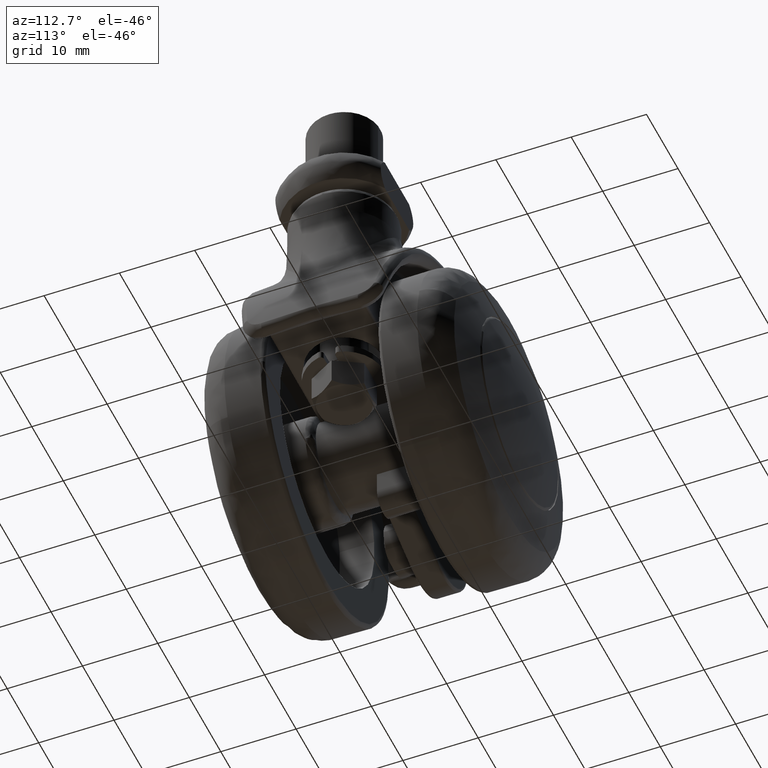
[diagram: clean part render]
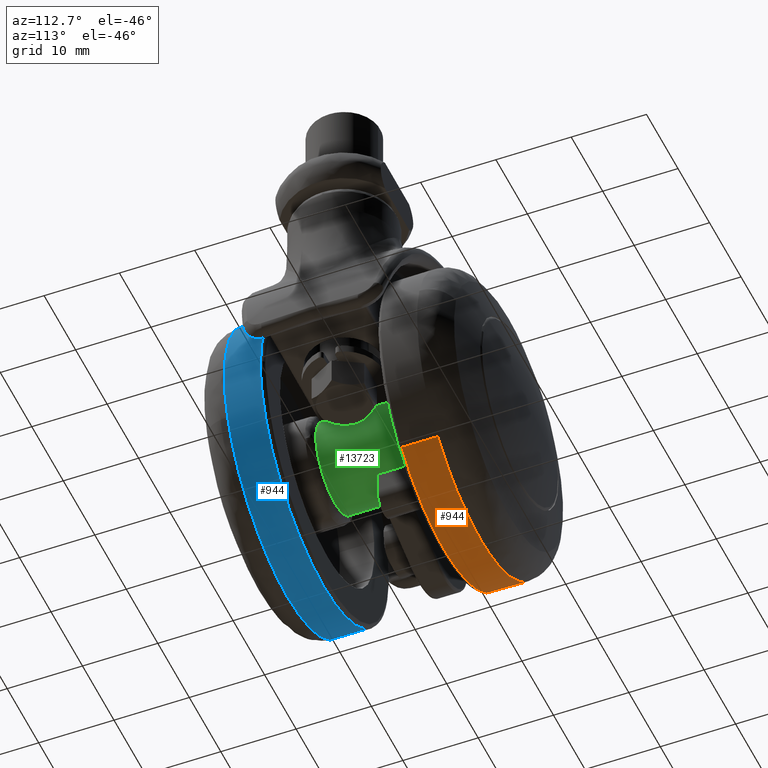
[diagram: same view with three faces highlighted in distinct colors, each labeled with its STEP entity id]
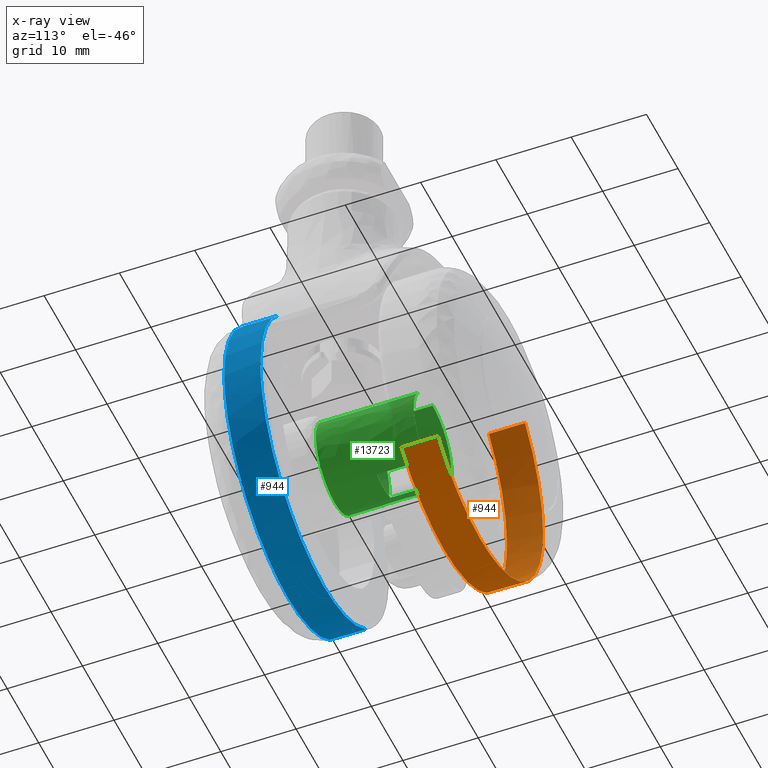
[diagram: x-ray of the same camera — body ghosted, the three highlighted faces saturated]
A machine part, auxiliary view with three faces highlighted in distinct colors.
The next image is the same camera in x-ray (body ghosted, the three faces saturated) — at least one of them is partly hidden behind the body in this view.
Their STEP definitions:

[orange] entity #944 — the highlighted face is a freeform B-spline surface patch.
#816=CARTESIAN_POINT('',(-13.439927548451715,-7.879888901954807,-14.811088666683775));
#817=CARTESIAN_POINT('',(0.546974982606514,-7.879888901954809,-27.503130479081356));
#818=CARTESIAN_POINT('',(14.018185285997010,-7.879888901954807,-14.265008983083630));
#819=CARTESIAN_POINT('',(28.283194269080639,-7.879888901954808,-0.246823697086612));
#820=CARTESIAN_POINT('',(14.265008983083630,-7.879888901954807,14.018185285997021));
#821=CARTESIAN_POINT('',(-13.439927548451715,-12.927557271200939,-14.811088666683775));
#822=CARTESIAN_POINT('',(0.546974982606514,-12.927557271200939,-27.503130479081356));
#823=CARTESIAN_POINT('',(14.018185285997010,-12.927557271200939,-14.265008983083630));
#824=CARTESIAN_POINT('',(28.283194269080639,-12.927557271200939,-0.246823697086612));
#825=CARTESIAN_POINT('',(14.265008983083630,-12.927557271200939,14.018185285997021));
#833=(BOUNDED_SURFACE()B_SPLINE_SURFACE(2,1,((#816,#821),(#817,#822),(#818,#823),(#819,#824),(#820,#825)),.UNSPECIFIED.,.F.,.F.,.U.)B_SPLINE_SURFACE_WITH_KNOTS((3,2,3),(2,2),(0.0,31.811601590253680,64.948686580101281),(0.0,5.047668369246133),.UNSPECIFIED.)GEOMETRIC_REPRESENTATION_ITEM()RATIONAL_B_SPLINE_SURFACE(((0.977505800795127,0.977505800795127),(0.718822509939086,0.718822509939086),(1.0,1.0),(0.707106781186548,0.707106781186548),(1.0,1.0)))REPRESENTATION_ITEM('')SURFACE());
#834=CARTESIAN_POINT('',(-13.439926182245239,-7.999999996668342,-14.811089906395660));
#835=VERTEX_POINT('',#834);
#836=CARTESIAN_POINT('',(0.0,-8.000000000000091,-20.0));
#837=VERTEX_POINT('',#836);
#838=CARTESIAN_POINT('',(-13.439926182245237,-7.999999996668342,-14.811089906395654));
#839=CARTESIAN_POINT('',(-7.721634811415954,-8.000000000000091,-20.000000000000004));
#840=CARTESIAN_POINT('',(0.0,-8.000000000000091,-20.0));
#848=(BOUNDED_CURVE()B_SPLINE_CURVE(2,(#838,#839,#840),.UNSPECIFIED.,.F.,.U.)B_SPLINE_CURVE_WITH_KNOTS((3,3),(0.382319061720413,0.500000000000000),.UNSPECIFIED.)CURVE()GEOMETRIC_REPRESENTATION_ITEM()RATIONAL_B_SPLINE_CURVE((0.854055467347301,0.862128204777218,1.0))REPRESENTATION_ITEM(''));
#849=EDGE_CURVE('',#835,#837,#848,.T.);
#850=ORIENTED_EDGE('',*,*,#849,.T.);
#851=CARTESIAN_POINT('',(19.993683785662999,-7.999999987481187,0.502601908986195));
#852=VERTEX_POINT('',#851);
#853=CARTESIAN_POINT('',(0.0,-8.000000000000091,-20.0));
#854=CARTESIAN_POINT('',(19.999999999999996,-8.000000000000092,-19.999999999999996));
#855=CARTESIAN_POINT('',(20.0,-8.000000000000091,1.487897E-015));
#856=CARTESIAN_POINT('',(20.0,-8.000000000000091,0.251340642587074));
#857=CARTESIAN_POINT('',(19.993683785662999,-7.999999987481187,0.502601908986195));
#865=(BOUNDED_CURVE()B_SPLINE_CURVE(2,(#853,#854,#855,#856,#857),.UNSPECIFIED.,.F.,.U.)B_SPLINE_CURVE_WITH_KNOTS((3,2,3),(0.500000000000000,0.750000000000000,0.754420108232283),.UNSPECIFIED.)CURVE()GEOMETRIC_REPRESENTATION_ITEM()RATIONAL_B_SPLINE_CURVE((1.0,0.707106781186548,1.0,0.994821521089371,0.989826157676851))REPRESENTATION_ITEM(''));
#866=EDGE_CURVE('',#837,#852,#865,.T.);
#867=ORIENTED_EDGE('',*,*,#866,.T.);
#868=CARTESIAN_POINT('',(14.265009088849119,-7.999999996159275,14.018185178351420));
#869=VERTEX_POINT('',#868);
#870=CARTESIAN_POINT('',(19.993683785662991,-7.999999987481187,0.502601908986195));
#871=CARTESIAN_POINT('',(19.795399574888581,-7.999999992545804,8.390418763815214));
#872=CARTESIAN_POINT('',(14.265009088849117,-7.999999996159275,14.018185178351427));
#880=(BOUNDED_CURVE()B_SPLINE_CURVE(2,(#870,#871,#872),.UNSPECIFIED.,.F.,.U.)B_SPLINE_CURVE_WITH_KNOTS((3,3),(0.754420108232283,0.873683240132008),.UNSPECIFIED.)CURVE()GEOMETRIC_REPRESENTATION_ITEM()RATIONAL_B_SPLINE_CURVE((0.989826157676851,0.855041520232182,0.853569641307702))REPRESENTATION_ITEM(''));
#881=EDGE_CURVE('',#852,#869,#880,.T.);
#882=ORIENTED_EDGE('',*,*,#881,.T.);
#883=CARTESIAN_POINT('',(14.265009199552139,-12.804443408154899,14.018185065717050));
#884=VERTEX_POINT('',#883);
#885=CARTESIAN_POINT('',(14.265009088849119,-7.999999996159275,14.018185178351420));
#886=CARTESIAN_POINT('',(14.265009199552139,-12.804443408154899,14.018185065717050));
#887=QUASI_UNIFORM_CURVE('',1,(#885,#886),.UNSPECIFIED.,.F.,.U.);
#888=EDGE_CURVE('',#869,#884,#887,.T.);
#889=ORIENTED_EDGE('',*,*,#888,.T.);
#890=CARTESIAN_POINT('',(18.941966099871760,-12.804443408536400,-6.418872196212433));
#891=VERTEX_POINT('',#890);
#892=CARTESIAN_POINT('',(14.265009199552138,-12.804443408154896,14.018185065717049));
#893=CARTESIAN_POINT('',(20.0,-12.804443408154903,8.182215668023643));
#894=CARTESIAN_POINT('',(20.0,-12.804443408154899,1.487897E-015));
#895=CARTESIAN_POINT('',(19.999999999999996,-12.804443408154901,-3.296634884752582));
#896=CARTESIAN_POINT('',(18.941966099871756,-12.804443408536402,-6.418872196212433));
#904=(BOUNDED_CURVE()B_SPLINE_CURVE(2,(#892,#893,#894,#895,#896),.UNSPECIFIED.,.F.,.U.)B_SPLINE_CURVE_WITH_KNOTS((3,2,3),(0.126316762251209,0.250000000000000,0.304552238307253),.UNSPECIFIED.)CURVE()GEOMETRIC_REPRESENTATION_ITEM()RATIONAL_B_SPLINE_CURVE((0.853569641366527,0.855096073529949,1.0,0.936088077314840,0.900068462125645))REPRESENTATION_ITEM(''));
#905=EDGE_CURVE('',#884,#891,#904,.T.);
#906=ORIENTED_EDGE('',*,*,#905,.T.);
#907=CARTESIAN_POINT('',(0.0,-12.804443408154899,-20.0));
#908=VERTEX_POINT('',#907);
#909=CARTESIAN_POINT('',(18.941966099871756,-12.804443408536402,-6.418872196212433));
#910=CARTESIAN_POINT('',(14.339723481848953,-12.804443408154901,-20.0));
#911=CARTESIAN_POINT('',(0.0,-12.804443408154899,-20.0));
#919=(BOUNDED_CURVE()B_SPLINE_CURVE(2,(#909,#910,#911),.UNSPECIFIED.,.F.,.U.)B_SPLINE_CURVE_WITH_KNOTS((3,3),(0.304552238307253,0.500000000000000),.UNSPECIFIED.)CURVE()GEOMETRIC_REPRESENTATION_ITEM()RATIONAL_B_SPLINE_CURVE((0.900068462125645,0.771018703871708,1.0))REPRESENTATION_ITEM(''));
#920=EDGE_CURVE('',#891,#908,#919,.T.);
#921=ORIENTED_EDGE('',*,*,#920,.T.);
#922=CARTESIAN_POINT('',(-13.439926278124100,-12.804443408154899,-14.811089819408499));
#923=VERTEX_POINT('',#922);
#924=CARTESIAN_POINT('',(0.0,-12.804443408154899,-20.0));
#925=CARTESIAN_POINT('',(-7.721634885806339,-12.804443408154901,-19.999999999999993));
#926=CARTESIAN_POINT('',(-13.439926278124103,-12.804443408154905,-14.811089819408497));
#934=(BOUNDED_CURVE()B_SPLINE_CURVE(2,(#924,#925,#926),.UNSPECIFIED.,.F.,.U.)B_SPLINE_CURVE_WITH_KNOTS((3,3),(0.500000000000000,0.617680939257017),.UNSPECIFIED.)CURVE()GEOMETRIC_REPRESENTATION_ITEM()RATIONAL_B_SPLINE_CURVE((1.0,0.862128203632088,0.854055467213200))REPRESENTATION_ITEM(''));
#935=EDGE_CURVE('',#908,#923,#934,.T.);
#936=ORIENTED_EDGE('',*,*,#935,.T.);
#937=CARTESIAN_POINT('',(-13.439926182245239,-7.999999996668342,-14.811089906395660));
#938=CARTESIAN_POINT('',(-13.439926278124100,-12.804443408154899,-14.811089819408499));
#939=QUASI_UNIFORM_CURVE('',1,(#937,#938),.UNSPECIFIED.,.F.,.U.);
#940=EDGE_CURVE('',#835,#923,#939,.T.);
#941=ORIENTED_EDGE('',*,*,#940,.F.);
#942=EDGE_LOOP('',(#850,#867,#882,#889,#906,#921,#936,#941));
#943=FACE_OUTER_BOUND('',#942,.T.);
#944=ADVANCED_FACE('',(#943),#833,.T.);

[blue] entity #944 — the highlighted face is a freeform B-spline surface patch.
#816=CARTESIAN_POINT('',(-13.439927548451715,-7.879888901954807,-14.811088666683775));
#817=CARTESIAN_POINT('',(0.546974982606514,-7.879888901954809,-27.503130479081356));
#818=CARTESIAN_POINT('',(14.018185285997010,-7.879888901954807,-14.265008983083630));
#819=CARTESIAN_POINT('',(28.283194269080639,-7.879888901954808,-0.246823697086612));
#820=CARTESIAN_POINT('',(14.265008983083630,-7.879888901954807,14.018185285997021));
#821=CARTESIAN_POINT('',(-13.439927548451715,-12.927557271200939,-14.811088666683775));
#822=CARTESIAN_POINT('',(0.546974982606514,-12.927557271200939,-27.503130479081356));
#823=CARTESIAN_POINT('',(14.018185285997010,-12.927557271200939,-14.265008983083630));
#824=CARTESIAN_POINT('',(28.283194269080639,-12.927557271200939,-0.246823697086612));
#825=CARTESIAN_POINT('',(14.265008983083630,-12.927557271200939,14.018185285997021));
#833=(BOUNDED_SURFACE()B_SPLINE_SURFACE(2,1,((#816,#821),(#817,#822),(#818,#823),(#819,#824),(#820,#825)),.UNSPECIFIED.,.F.,.F.,.U.)B_SPLINE_SURFACE_WITH_KNOTS((3,2,3),(2,2),(0.0,31.811601590253680,64.948686580101281),(0.0,5.047668369246133),.UNSPECIFIED.)GEOMETRIC_REPRESENTATION_ITEM()RATIONAL_B_SPLINE_SURFACE(((0.977505800795127,0.977505800795127),(0.718822509939086,0.718822509939086),(1.0,1.0),(0.707106781186548,0.707106781186548),(1.0,1.0)))REPRESENTATION_ITEM('')SURFACE());
#834=CARTESIAN_POINT('',(-13.439926182245239,-7.999999996668342,-14.811089906395660));
#835=VERTEX_POINT('',#834);
#836=CARTESIAN_POINT('',(0.0,-8.000000000000091,-20.0));
#837=VERTEX_POINT('',#836);
#838=CARTESIAN_POINT('',(-13.439926182245237,-7.999999996668342,-14.811089906395654));
#839=CARTESIAN_POINT('',(-7.721634811415954,-8.000000000000091,-20.000000000000004));
#840=CARTESIAN_POINT('',(0.0,-8.000000000000091,-20.0));
#848=(BOUNDED_CURVE()B_SPLINE_CURVE(2,(#838,#839,#840),.UNSPECIFIED.,.F.,.U.)B_SPLINE_CURVE_WITH_KNOTS((3,3),(0.382319061720413,0.500000000000000),.UNSPECIFIED.)CURVE()GEOMETRIC_REPRESENTATION_ITEM()RATIONAL_B_SPLINE_CURVE((0.854055467347301,0.862128204777218,1.0))REPRESENTATION_ITEM(''));
#849=EDGE_CURVE('',#835,#837,#848,.T.);
#850=ORIENTED_EDGE('',*,*,#849,.T.);
#851=CARTESIAN_POINT('',(19.993683785662999,-7.999999987481187,0.502601908986195));
#852=VERTEX_POINT('',#851);
#853=CARTESIAN_POINT('',(0.0,-8.000000000000091,-20.0));
#854=CARTESIAN_POINT('',(19.999999999999996,-8.000000000000092,-19.999999999999996));
#855=CARTESIAN_POINT('',(20.0,-8.000000000000091,1.487897E-015));
#856=CARTESIAN_POINT('',(20.0,-8.000000000000091,0.251340642587074));
#857=CARTESIAN_POINT('',(19.993683785662999,-7.999999987481187,0.502601908986195));
#865=(BOUNDED_CURVE()B_SPLINE_CURVE(2,(#853,#854,#855,#856,#857),.UNSPECIFIED.,.F.,.U.)B_SPLINE_CURVE_WITH_KNOTS((3,2,3),(0.500000000000000,0.750000000000000,0.754420108232283),.UNSPECIFIED.)CURVE()GEOMETRIC_REPRESENTATION_ITEM()RATIONAL_B_SPLINE_CURVE((1.0,0.707106781186548,1.0,0.994821521089371,0.989826157676851))REPRESENTATION_ITEM(''));
#866=EDGE_CURVE('',#837,#852,#865,.T.);
#867=ORIENTED_EDGE('',*,*,#866,.T.);
#868=CARTESIAN_POINT('',(14.265009088849119,-7.999999996159275,14.018185178351420));
#869=VERTEX_POINT('',#868);
#870=CARTESIAN_POINT('',(19.993683785662991,-7.999999987481187,0.502601908986195));
#871=CARTESIAN_POINT('',(19.795399574888581,-7.999999992545804,8.390418763815214));
#872=CARTESIAN_POINT('',(14.265009088849117,-7.999999996159275,14.018185178351427));
#880=(BOUNDED_CURVE()B_SPLINE_CURVE(2,(#870,#871,#872),.UNSPECIFIED.,.F.,.U.)B_SPLINE_CURVE_WITH_KNOTS((3,3),(0.754420108232283,0.873683240132008),.UNSPECIFIED.)CURVE()GEOMETRIC_REPRESENTATION_ITEM()RATIONAL_B_SPLINE_CURVE((0.989826157676851,0.855041520232182,0.853569641307702))REPRESENTATION_ITEM(''));
#881=EDGE_CURVE('',#852,#869,#880,.T.);
#882=ORIENTED_EDGE('',*,*,#881,.T.);
#883=CARTESIAN_POINT('',(14.265009199552139,-12.804443408154899,14.018185065717050));
#884=VERTEX_POINT('',#883);
#885=CARTESIAN_POINT('',(14.265009088849119,-7.999999996159275,14.018185178351420));
#886=CARTESIAN_POINT('',(14.265009199552139,-12.804443408154899,14.018185065717050));
#887=QUASI_UNIFORM_CURVE('',1,(#885,#886),.UNSPECIFIED.,.F.,.U.);
#888=EDGE_CURVE('',#869,#884,#887,.T.);
#889=ORIENTED_EDGE('',*,*,#888,.T.);
#890=CARTESIAN_POINT('',(18.941966099871760,-12.804443408536400,-6.418872196212433));
#891=VERTEX_POINT('',#890);
#892=CARTESIAN_POINT('',(14.265009199552138,-12.804443408154896,14.018185065717049));
#893=CARTESIAN_POINT('',(20.0,-12.804443408154903,8.182215668023643));
#894=CARTESIAN_POINT('',(20.0,-12.804443408154899,1.487897E-015));
#895=CARTESIAN_POINT('',(19.999999999999996,-12.804443408154901,-3.296634884752582));
#896=CARTESIAN_POINT('',(18.941966099871756,-12.804443408536402,-6.418872196212433));
#904=(BOUNDED_CURVE()B_SPLINE_CURVE(2,(#892,#893,#894,#895,#896),.UNSPECIFIED.,.F.,.U.)B_SPLINE_CURVE_WITH_KNOTS((3,2,3),(0.126316762251209,0.250000000000000,0.304552238307253),.UNSPECIFIED.)CURVE()GEOMETRIC_REPRESENTATION_ITEM()RATIONAL_B_SPLINE_CURVE((0.853569641366527,0.855096073529949,1.0,0.936088077314840,0.900068462125645))REPRESENTATION_ITEM(''));
#905=EDGE_CURVE('',#884,#891,#904,.T.);
#906=ORIENTED_EDGE('',*,*,#905,.T.);
#907=CARTESIAN_POINT('',(0.0,-12.804443408154899,-20.0));
#908=VERTEX_POINT('',#907);
#909=CARTESIAN_POINT('',(18.941966099871756,-12.804443408536402,-6.418872196212433));
#910=CARTESIAN_POINT('',(14.339723481848953,-12.804443408154901,-20.0));
#911=CARTESIAN_POINT('',(0.0,-12.804443408154899,-20.0));
#919=(BOUNDED_CURVE()B_SPLINE_CURVE(2,(#909,#910,#911),.UNSPECIFIED.,.F.,.U.)B_SPLINE_CURVE_WITH_KNOTS((3,3),(0.304552238307253,0.500000000000000),.UNSPECIFIED.)CURVE()GEOMETRIC_REPRESENTATION_ITEM()RATIONAL_B_SPLINE_CURVE((0.900068462125645,0.771018703871708,1.0))REPRESENTATION_ITEM(''));
#920=EDGE_CURVE('',#891,#908,#919,.T.);
#921=ORIENTED_EDGE('',*,*,#920,.T.);
#922=CARTESIAN_POINT('',(-13.439926278124100,-12.804443408154899,-14.811089819408499));
#923=VERTEX_POINT('',#922);
#924=CARTESIAN_POINT('',(0.0,-12.804443408154899,-20.0));
#925=CARTESIAN_POINT('',(-7.721634885806339,-12.804443408154901,-19.999999999999993));
#926=CARTESIAN_POINT('',(-13.439926278124103,-12.804443408154905,-14.811089819408497));
#934=(BOUNDED_CURVE()B_SPLINE_CURVE(2,(#924,#925,#926),.UNSPECIFIED.,.F.,.U.)B_SPLINE_CURVE_WITH_KNOTS((3,3),(0.500000000000000,0.617680939257017),.UNSPECIFIED.)CURVE()GEOMETRIC_REPRESENTATION_ITEM()RATIONAL_B_SPLINE_CURVE((1.0,0.862128203632088,0.854055467213200))REPRESENTATION_ITEM(''));
#935=EDGE_CURVE('',#908,#923,#934,.T.);
#936=ORIENTED_EDGE('',*,*,#935,.T.);
#937=CARTESIAN_POINT('',(-13.439926182245239,-7.999999996668342,-14.811089906395660));
#938=CARTESIAN_POINT('',(-13.439926278124100,-12.804443408154899,-14.811089819408499));
#939=QUASI_UNIFORM_CURVE('',1,(#937,#938),.UNSPECIFIED.,.F.,.U.);
#940=EDGE_CURVE('',#835,#923,#939,.T.);
#941=ORIENTED_EDGE('',*,*,#940,.F.);
#942=EDGE_LOOP('',(#850,#867,#882,#889,#906,#921,#936,#941));
#943=FACE_OUTER_BOUND('',#942,.T.);
#944=ADVANCED_FACE('',(#943),#833,.T.);

[green] entity #13723 — the highlighted face is a freeform B-spline surface patch.
#7840=CARTESIAN_POINT('',(4.873397172404481,-6.0,3.500000000000000));
#7841=VERTEX_POINT('',#7840);
#7842=CARTESIAN_POINT('',(4.472135954999580,-6.500000000000000,4.0));
#7843=VERTEX_POINT('',#7842);
#7844=CARTESIAN_POINT('',(4.873397172404481,-6.0,3.500000000000000));
#7845=CARTESIAN_POINT('',(4.873397172404481,-6.038043631529900,3.500000000000000));
#7846=CARTESIAN_POINT('',(4.870327696053418,-6.075145820077344,3.504284851854230));
#7847=CARTESIAN_POINT('',(4.861364218153590,-6.129476493320387,3.516697880956897));
#7848=CARTESIAN_POINT('',(4.857605229608828,-6.147478470392384,3.521892577064972));
#7849=CARTESIAN_POINT('',(4.848813562073136,-6.182121757871587,3.533986832369928));
#7850=CARTESIAN_POINT('',(4.843778379174472,-6.198842518270711,3.540890015935119));
#7851=CARTESIAN_POINT('',(4.826844195021820,-6.247317913213905,3.563978041880013));
#7852=CARTESIAN_POINT('',(4.812945271027090,-6.277647737669727,3.582769527517065));
#7853=CARTESIAN_POINT('',(4.781629304459965,-6.331870855867387,3.624458699438665));
#7854=CARTESIAN_POINT('',(4.764080119253495,-6.356139230071167,3.647535195559629));
#7855=CARTESIAN_POINT('',(4.725909973796815,-6.398961843411636,3.696856408501742));
#7856=CARTESIAN_POINT('',(4.705680332537444,-6.417124039733008,3.722597525430104));
#7857=CARTESIAN_POINT('',(4.663121100472019,-6.447958508277308,3.775772944802249));
#7858=CARTESIAN_POINT('',(4.640668847959034,-6.460668545446652,3.803355896740793));
#7859=CARTESIAN_POINT('',(4.570978412814675,-6.490761111502084,3.887344863058059));
#7860=CARTESIAN_POINT('',(4.522535397748184,-6.500000000000000,3.943651709993007));
#7861=CARTESIAN_POINT('',(4.472135954999580,-6.500000000000000,4.0));
#7862=B_SPLINE_CURVE_WITH_KNOTS('',3,(#7844,#7845,#7846,#7847,#7848,#7849,#7850,#7851,#7852,#7853,#7854,#7855,#7856,#7857,#7858,#7859,#7860,#7861),.UNSPECIFIED.,.F.,.U.,(4,2,2,2,2,2,2,2,4),(0.0,0.124999999999999,0.187499999999999,0.249999999999999,0.374999999999999,0.499999999999999,0.624999999999999,0.749999999999999,1.0),.UNSPECIFIED.);
#7863=EDGE_CURVE('',#7841,#7843,#7862,.T.);
#7966=CARTESIAN_POINT('',(4.472135954999580,6.500000000000000,4.0));
#7967=VERTEX_POINT('',#7966);
#7968=CARTESIAN_POINT('',(4.873397172404481,6.0,3.500000000000000));
#7969=VERTEX_POINT('',#7968);
#7970=CARTESIAN_POINT('',(4.472135954999580,6.500000000000000,4.0));
#7971=CARTESIAN_POINT('',(4.522553274307344,6.500000000000003,3.943631723392267));
#7972=CARTESIAN_POINT('',(4.570960519747982,6.490751288153390,3.887363399851654));
#7973=CARTESIAN_POINT('',(4.640524979077231,6.460739414450947,3.803530792232468));
#7974=CARTESIAN_POINT('',(4.663096663725018,6.447977027159212,3.775803583755952));
#7975=CARTESIAN_POINT('',(4.705719414186365,6.417094910233253,3.722548588440077));
#7976=CARTESIAN_POINT('',(4.725951898305869,6.398918035248059,3.696802515757882));
#7977=CARTESIAN_POINT('',(4.764078570931958,6.356137737271976,3.647536916276729));
#7978=CARTESIAN_POINT('',(4.781665420079106,6.331803392360559,3.624410392992028));
#7979=CARTESIAN_POINT('',(4.805069774641122,6.291286499920469,3.593253843306790));
#7980=CARTESIAN_POINT('',(4.812407494464185,6.277069203304232,3.583415429311206));
#7981=CARTESIAN_POINT('',(4.826097233992199,6.247077978082947,3.564956874893934));
#7982=CARTESIAN_POINT('',(4.832444596721898,6.231275972299413,3.556342295220353));
#7983=CARTESIAN_POINT('',(4.849398503237238,6.182775107547617,3.533227895485096));
#7984=CARTESIAN_POINT('',(4.858157185732174,6.148578839944221,3.521138317056384));
#7985=CARTESIAN_POINT('',(4.867211079633891,6.094198380371591,3.508601270958702));
#7986=CARTESIAN_POINT('',(4.869538363423837,6.075468221566166,3.505367753192813));
#7987=CARTESIAN_POINT('',(4.872618631647948,6.037948835616007,3.501084778821818));
#7988=CARTESIAN_POINT('',(4.873397172404481,6.019047180122175,3.500000000000000));
#7989=CARTESIAN_POINT('',(4.873397172404481,6.0,3.500000000000000));
#7990=B_SPLINE_CURVE_WITH_KNOTS('',3,(#7970,#7971,#7972,#7973,#7974,#7975,#7976,#7977,#7978,#7979,#7980,#7981,#7982,#7983,#7984,#7985,#7986,#7987,#7988,#7989),.UNSPECIFIED.,.F.,.U.,(4,2,2,2,2,2,2,2,2,4),(0.0,0.250000000000003,0.375000000000004,0.500000000000004,0.625000000000005,0.687500000000005,0.750000000000005,0.875000000000004,0.937500000000002,1.0),.UNSPECIFIED.);
#7991=EDGE_CURVE('',#7967,#7969,#7990,.T.);
#8130=CARTESIAN_POINT('',(-4.159565793980475,1.750000000000030,-4.324119841718960));
#8131=VERTEX_POINT('',#8130);
#8137=CARTESIAN_POINT('',(-3.900000999999915,1.449999999999950,-4.559604390733880));
#8138=VERTEX_POINT('',#8137);
#8139=CARTESIAN_POINT('',(-3.900000999999915,1.449999999999950,-4.559604390733880));
#8140=CARTESIAN_POINT('',(-3.900000999999916,1.471517070534011,-4.559604390733880));
#8141=CARTESIAN_POINT('',(-3.902071127552887,1.492548805717122,-4.557835959949600));
#8142=CARTESIAN_POINT('',(-3.910064411938047,1.533705805914220,-4.550980555527248));
#8143=CARTESIAN_POINT('',(-3.916078583014180,1.553905363059655,-4.545814309781735));
#8144=CARTESIAN_POINT('',(-3.931149499495019,1.591404508310975,-4.532787533072649));
#8145=CARTESIAN_POINT('',(-3.940337408440489,1.609130468680050,-4.524813032052478));
#8146=CARTESIAN_POINT('',(-3.961187293567520,1.641671825600654,-4.506571545273268));
#8147=CARTESIAN_POINT('',(-3.972714767156457,1.656347081617485,-4.496422671740318));
#8148=CARTESIAN_POINT('',(-3.997708730062205,1.682820789364480,-4.474215503717693));
#8149=CARTESIAN_POINT('',(-4.011165373998346,1.694553017836120,-4.462163487282778));
#8150=CARTESIAN_POINT('',(-4.038939063676907,1.714531742946561,-4.437039765959688));
#8151=CARTESIAN_POINT('',(-4.053368720758493,1.722902061028358,-4.423868824899478));
#8152=CARTESIAN_POINT('',(-4.098200330121306,1.743259574467859,-4.382511553841807));
#8153=CARTESIAN_POINT('',(-4.128663420421344,1.749999999999951,-4.353846227830929));
#8154=CARTESIAN_POINT('',(-4.159565793980475,1.750000000000030,-4.324119841718960));
#8155=B_SPLINE_CURVE_WITH_KNOTS('',3,(#8139,#8140,#8141,#8142,#8143,#8144,#8145,#8146,#8147,#8148,#8149,#8150,#8151,#8152,#8153,#8154),.UNSPECIFIED.,.F.,.U.,(4,2,2,2,2,2,2,4),(0.0,0.125000000000000,0.250000000000000,0.375000000000000,0.500000000000000,0.625000000000000,0.750000000000000,1.0),.UNSPECIFIED.);
#8156=EDGE_CURVE('',#8138,#8131,#8155,.T.);
#8364=CARTESIAN_POINT('',(-4.159565793980475,-1.750000000000140,-4.324119841718960));
#8365=VERTEX_POINT('',#8364);
#8366=CARTESIAN_POINT('',(-3.900000999999915,-1.449999999999950,-4.559604390733880));
#8367=VERTEX_POINT('',#8366);
#8368=CARTESIAN_POINT('',(-4.159565793980475,-1.750000000000140,-4.324119841718960));
#8369=CARTESIAN_POINT('',(-4.128594504708247,-1.750000000000000,-4.353912520961871));
#8370=CARTESIAN_POINT('',(-4.098265340433036,-1.743239094320360,-4.382447748705868));
#8371=CARTESIAN_POINT('',(-4.053795849799743,-1.723120629968978,-4.423476684219026));
#8372=CARTESIAN_POINT('',(-4.039085922727988,-1.714622782341283,-4.436906067859777));
#8373=CARTESIAN_POINT('',(-4.011316981273832,-1.694676521061991,-4.462027187493876));
#8374=CARTESIAN_POINT('',(-3.998101916442939,-1.683180148244682,-4.473864011264904));
#8375=CARTESIAN_POINT('',(-3.973169978425510,-1.656884436437857,-4.496020290000283));
#8376=CARTESIAN_POINT('',(-3.961365152522050,-1.641906936501516,-4.506415128026010));
#8377=CARTESIAN_POINT('',(-3.940553568153911,-1.609509523072360,-4.524624708661175));
#8378=CARTESIAN_POINT('',(-3.931419863432795,-1.592008808395262,-4.532553397421524));
#8379=CARTESIAN_POINT('',(-3.916105578659665,-1.554039629407888,-4.545791409629572));
#8380=CARTESIAN_POINT('',(-3.910181137105670,-1.534140742778114,-4.550880300469822));
#8381=CARTESIAN_POINT('',(-3.902143157103179,-1.493081887752875,-4.557774326977382));
#8382=CARTESIAN_POINT('',(-3.900000999999915,-1.471594981873974,-4.559604390733879));
#8383=CARTESIAN_POINT('',(-3.900000999999915,-1.449999999999950,-4.559604390733880));
#8384=B_SPLINE_CURVE_WITH_KNOTS('',3,(#8368,#8369,#8370,#8371,#8372,#8373,#8374,#8375,#8376,#8377,#8378,#8379,#8380,#8381,#8382,#8383),.UNSPECIFIED.,.F.,.U.,(4,2,2,2,2,2,2,4),(0.0,0.250000000000002,0.375000000000002,0.500000000000002,0.625000000000001,0.750000000000001,0.875000000000000,1.0),.UNSPECIFIED.);
#8385=EDGE_CURVE('',#8365,#8367,#8384,.T.);
#8448=CARTESIAN_POINT('',(-4.580219335550281,-1.750000000000030,3.875769709135380));
#8449=VERTEX_POINT('',#8448);
#8455=CARTESIAN_POINT('',(-4.580219335550281,1.750000000000030,3.875769709135380));
#8456=VERTEX_POINT('',#8455);
#8457=CARTESIAN_POINT('',(-4.580219335550281,-1.750000000000030,3.875769709135380));
#8458=CARTESIAN_POINT('',(-4.580219335550281,1.750000000000030,3.875769709135380));
#8459=QUASI_UNIFORM_CURVE('',1,(#8457,#8458),.UNSPECIFIED.,.F.,.U.);
#8460=EDGE_CURVE('',#8449,#8456,#8459,.T.);
#8482=CARTESIAN_POINT('',(-3.900000999999915,1.449999999999950,-4.559604390733880));
#8483=CARTESIAN_POINT('',(-3.900000999999915,-1.449999999999950,-4.559604390733880));
#8484=QUASI_UNIFORM_CURVE('',1,(#8482,#8483),.UNSPECIFIED.,.F.,.U.);
#8485=EDGE_CURVE('',#8138,#8367,#8484,.T.);
#8703=CARTESIAN_POINT('',(-2.150000000000000,0.0,-5.601562282078100));
#8704=VERTEX_POINT('',#8703);
#8705=CARTESIAN_POINT('',(2.149999999999805,0.0,-5.601562282078170));
#8706=VERTEX_POINT('',#8705);
#8707=CARTESIAN_POINT('',(-2.149999999999999,0.0,-5.601562282078100));
#8708=CARTESIAN_POINT('',(-1.123233E-013,0.0,-6.426778492703696));
#8709=CARTESIAN_POINT('',(2.149999999999804,0.0,-5.601562282078175));
#8717=(BOUNDED_CURVE()B_SPLINE_CURVE(2,(#8707,#8708,#8709),.UNSPECIFIED.,.F.,.U.)CURVE()GEOMETRIC_REPRESENTATION_ITEM()QUASI_UNIFORM_CURVE()RATIONAL_B_SPLINE_CURVE((1.0,0.933593713679689,1.0))REPRESENTATION_ITEM(''));
#8718=EDGE_CURVE('',#8704,#8706,#8717,.T.);
#8758=CARTESIAN_POINT('',(-2.150000000000000,6.500000000000000,-5.601562282078100));
#8759=VERTEX_POINT('',#8758);
#8760=CARTESIAN_POINT('',(-2.150000000000000,0.0,-5.601562282078100));
#8761=CARTESIAN_POINT('',(-2.150000000000000,6.500000000000000,-5.601562282078100));
#8762=QUASI_UNIFORM_CURVE('',1,(#8760,#8761),.UNSPECIFIED.,.F.,.U.);
#8763=EDGE_CURVE('',#8704,#8759,#8762,.T.);
#8785=CARTESIAN_POINT('',(2.149999999999805,6.500000000000000,-5.601562282078170));
#8786=VERTEX_POINT('',#8785);
#8794=CARTESIAN_POINT('',(2.149999999999805,6.500000000000000,-5.601562282078170));
#8795=CARTESIAN_POINT('',(2.149999999999805,0.0,-5.601562282078170));
#8796=QUASI_UNIFORM_CURVE('',1,(#8794,#8795),.UNSPECIFIED.,.F.,.U.);
#8797=EDGE_CURVE('',#8786,#8706,#8796,.T.);
#9275=CARTESIAN_POINT('',(4.873397172404481,6.0,3.500000000000000));
#9276=CARTESIAN_POINT('',(4.873397172404481,-6.0,3.500000000000000));
#9277=QUASI_UNIFORM_CURVE('',1,(#9275,#9276),.UNSPECIFIED.,.F.,.U.);
#9278=EDGE_CURVE('',#7969,#7841,#9277,.T.);
#9297=CARTESIAN_POINT('',(0.0,-6.500000000000000,6.0));
#9298=VERTEX_POINT('',#9297);
#9305=CARTESIAN_POINT('',(0.0,6.500000000000000,6.0));
#9306=VERTEX_POINT('',#9305);
#9312=CARTESIAN_POINT('',(0.0,6.500000000000000,6.0));
#9313=CARTESIAN_POINT('',(0.0,-6.500000000000000,6.0));
#9314=QUASI_UNIFORM_CURVE('',1,(#9312,#9313),.UNSPECIFIED.,.F.,.U.);
#9315=EDGE_CURVE('',#9306,#9298,#9314,.T.);
#13419=CARTESIAN_POINT('',(0.0,-6.500000000000000,6.0));
#13420=CARTESIAN_POINT('',(-4.854594394498438,-6.500000000000000,6.0));
#13421=CARTESIAN_POINT('',(-5.867851116478246,-6.500000000000000,1.252327143698887));
#13422=CARTESIAN_POINT('',(-6.881107838458055,-6.500000000000000,-3.495345712602222));
#13423=CARTESIAN_POINT('',(-2.449489742783179,-6.500000000000000,-5.477225575051660));
#13424=CARTESIAN_POINT('',(1.982128352891696,-6.500000000000000,-7.459105437501099));
#13425=CARTESIAN_POINT('',(4.845330285445114,-6.500000000000000,-3.538753230298541));
#13426=CARTESIAN_POINT('',(7.708532217998538,-6.500000000000000,0.381598976904021));
#13427=CARTESIAN_POINT('',(4.472135954999580,-6.500000000000000,4.0));
#13435=(BOUNDED_CURVE()B_SPLINE_CURVE(2,(#13419,#13420,#13421,#13422,#13423,#13424,#13425,#13426,#13427),.UNSPECIFIED.,.F.,.U.)B_SPLINE_CURVE_WITH_KNOTS((3,2,2,2,3),(0.0,0.250000000000000,0.500000000000000,0.750000000000000,1.0),.UNSPECIFIED.)CURVE()GEOMETRIC_REPRESENTATION_ITEM()RATIONAL_B_SPLINE_CURVE((1.0,0.777406325744935,1.0,0.777406325744935,1.0,0.777406325744935,1.0,0.777406325744935,1.0))REPRESENTATION_ITEM(''));
#13436=EDGE_CURVE('',#9298,#7843,#13435,.T.);
#13460=CARTESIAN_POINT('',(2.149999999999806,6.500000000000000,-5.601562282078174));
#13461=CARTESIAN_POINT('',(5.091273795792590,6.499999999999999,-4.472638181531028));
#13462=CARTESIAN_POINT('',(5.831866829393523,6.500000000000000,-1.410435849026654));
#13463=CARTESIAN_POINT('',(6.572459862994457,6.499999999999999,1.651766483477722));
#13464=CARTESIAN_POINT('',(4.472135954999579,6.500000000000000,4.000000000000001));
#13472=(BOUNDED_CURVE()B_SPLINE_CURVE(2,(#13460,#13461,#13462,#13463,#13464),.UNSPECIFIED.,.F.,.U.)B_SPLINE_CURVE_WITH_KNOTS((3,2,3),(0.0,0.500000000000000,1.0),.UNSPECIFIED.)CURVE()GEOMETRIC_REPRESENTATION_ITEM()RATIONAL_B_SPLINE_CURVE((1.0,0.885368394263666,1.0,0.885368394263666,1.0))REPRESENTATION_ITEM(''));
#13473=EDGE_CURVE('',#8786,#7967,#13472,.T.);
#13478=CARTESIAN_POINT('',(0.0,6.500000000000000,6.0));
#13479=CARTESIAN_POINT('',(-4.990241415677488,6.500000000000000,6.0));
#13480=CARTESIAN_POINT('',(-5.899549715549000,6.500000000000000,1.093303779269839));
#13481=CARTESIAN_POINT('',(-6.808858015420510,6.500000000000000,-3.813392441460329));
#13482=CARTESIAN_POINT('',(-2.150000000000003,6.500000000000000,-5.601562282078098));
#13490=(BOUNDED_CURVE()B_SPLINE_CURVE(2,(#13478,#13479,#13480,#13481,#13482),.UNSPECIFIED.,.F.,.U.)B_SPLINE_CURVE_WITH_KNOTS((3,2,3),(0.0,0.500000000000000,1.0),.UNSPECIFIED.)CURVE()GEOMETRIC_REPRESENTATION_ITEM()RATIONAL_B_SPLINE_CURVE((1.0,0.768835904645774,1.0,0.768835904645774,1.0))REPRESENTATION_ITEM(''));
#13491=EDGE_CURVE('',#9306,#8759,#13490,.T.);
#13653=CARTESIAN_POINT('',(4.344222267418988,6.825000000000001,4.138566526136919));
#13654=CARTESIAN_POINT('',(4.344222267418988,-6.833125000000001,4.138566526136919));
#13655=CARTESIAN_POINT('',(7.770984984585525,6.825000000000001,0.541519382624707));
#13656=CARTESIAN_POINT('',(7.770984984585525,-6.833125000000001,0.541519382624707));
#13657=CARTESIAN_POINT('',(4.876238200254703,6.825000000000001,-3.496040762688094));
#13658=CARTESIAN_POINT('',(4.876238200254703,-6.833125000000001,-3.496040762688094));
#13659=CARTESIAN_POINT('',(1.981491415923882,6.825000000000001,-7.533600908000896));
#13660=CARTESIAN_POINT('',(1.981491415923882,-6.833125000000001,-7.533600908000896));
#13661=CARTESIAN_POINT('',(-2.525151008116037,6.825000000000001,-5.442757792352196));
#13662=CARTESIAN_POINT('',(-2.525151008116037,-6.833125000000001,-5.442757792352196));
#13663=CARTESIAN_POINT('',(-7.031793432155957,6.825000000000001,-3.351914676703496));
#13664=CARTESIAN_POINT('',(-7.031793432155957,-6.833125000000001,-3.351914676703496));
#13665=CARTESIAN_POINT('',(-5.818240915385360,6.825000000000001,1.465630461793051));
#13666=CARTESIAN_POINT('',(-5.818240915385360,-6.833125000000001,1.465630461793051));
#13667=CARTESIAN_POINT('',(-4.604688398614764,6.825000000000001,6.283175600289598));
#13668=CARTESIAN_POINT('',(-4.604688398614764,-6.833125000000001,6.283175600289598));
#13669=CARTESIAN_POINT('',(0.354667452098373,6.825000000000001,5.989508410414166));
#13670=CARTESIAN_POINT('',(0.354667452098373,-6.833125000000001,5.989508410414166));
#13678=(BOUNDED_SURFACE()B_SPLINE_SURFACE(1,2,((#13653,#13655,#13657,#13659,#13661,#13663,#13665,#13667,#13669),(#13654,#13656,#13658,#13660,#13662,#13664,#13666,#13668,#13670)),.UNSPECIFIED.,.F.,.F.,.U.)B_SPLINE_SURFACE_WITH_KNOTS((2,2),(3,2,2,2,3),(0.0,13.658125000000000),(0.0,8.646446794279960,17.292893588559920,25.939340382839880,34.585787177119840),.UNSPECIFIED.)GEOMETRIC_REPRESENTATION_ITEM()RATIONAL_B_SPLINE_SURFACE(((1.0,0.770235040753384,1.0,0.770235040753384,1.0,0.770235040753384,1.0,0.770235040753384,1.0),(1.0,0.770235040753384,1.0,0.770235040753384,1.0,0.770235040753384,1.0,0.770235040753384,1.0)))REPRESENTATION_ITEM('')SURFACE());
#13679=ORIENTED_EDGE('',*,*,#8797,.F.);
#13680=ORIENTED_EDGE('',*,*,#13473,.T.);
#13681=ORIENTED_EDGE('',*,*,#7991,.T.);
#13682=ORIENTED_EDGE('',*,*,#9278,.T.);
#13683=ORIENTED_EDGE('',*,*,#7863,.T.);
#13684=ORIENTED_EDGE('',*,*,#13436,.F.);
#13685=ORIENTED_EDGE('',*,*,#9315,.F.);
#13686=ORIENTED_EDGE('',*,*,#13491,.T.);
#13687=ORIENTED_EDGE('',*,*,#8763,.F.);
#13688=ORIENTED_EDGE('',*,*,#8718,.T.);
#13689=EDGE_LOOP('',(#13679,#13680,#13681,#13682,#13683,#13684,#13685,#13686,#13687,#13688));
#13690=FACE_OUTER_BOUND('',#13689,.T.);
#13691=CARTESIAN_POINT('',(-4.159565793980475,1.750000000000030,-4.324119841718958));
#13692=CARTESIAN_POINT('',(-8.216565431986101,1.750000000000030,-0.421509012660405));
#13693=CARTESIAN_POINT('',(-4.580219335550279,1.750000000000030,3.875769709135383));
#13701=(BOUNDED_CURVE()B_SPLINE_CURVE(2,(#13691,#13692,#13693),.UNSPECIFIED.,.F.,.U.)CURVE()GEOMETRIC_REPRESENTATION_ITEM()QUASI_UNIFORM_CURVE()RATIONAL_B_SPLINE_CURVE((1.0,0.729273144376925,1.0))REPRESENTATION_ITEM(''));
#13702=EDGE_CURVE('',#8131,#8456,#13701,.T.);
#13703=ORIENTED_EDGE('',*,*,#13702,.T.);
#13704=ORIENTED_EDGE('',*,*,#8460,.F.);
#13705=CARTESIAN_POINT('',(-4.580219335550281,-1.750000000000030,3.875769709135380));
#13706=CARTESIAN_POINT('',(-8.216565431986098,-1.750000000000139,-0.421509012660408));
#13707=CARTESIAN_POINT('',(-4.159565793980473,-1.750000000000140,-4.324119841718960));
#13715=(BOUNDED_CURVE()B_SPLINE_CURVE(2,(#13705,#13706,#13707),.UNSPECIFIED.,.F.,.U.)CURVE()GEOMETRIC_REPRESENTATION_ITEM()QUASI_UNIFORM_CURVE()RATIONAL_B_SPLINE_CURVE((1.0,0.729273144376925,1.0))REPRESENTATION_ITEM(''));
#13716=EDGE_CURVE('',#8449,#8365,#13715,.T.);
#13717=ORIENTED_EDGE('',*,*,#13716,.T.);
#13718=ORIENTED_EDGE('',*,*,#8385,.T.);
#13719=ORIENTED_EDGE('',*,*,#8485,.F.);
#13720=ORIENTED_EDGE('',*,*,#8156,.T.);
#13721=EDGE_LOOP('',(#13703,#13704,#13717,#13718,#13719,#13720));
#13722=FACE_BOUND('',#13721,.T.);
#13723=ADVANCED_FACE('',(#13690,#13722),#13678,.T.);